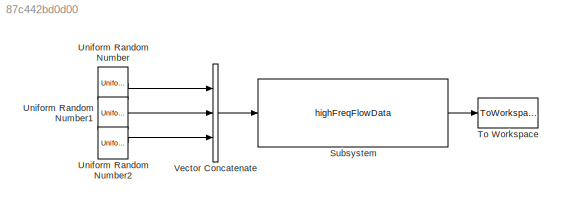
MODEL slx_87c442bd0d00
KIND model
CONFIG AbsTol = auto
CONFIG EnableMultiTasking = off
CONFIG FixedStep = auto
CONFIG MaxStep = auto
CONFIG MinStep = auto
CONFIG RelTol = 1e-3
CONFIG SampleTimeConstraint = Unconstrained
CONFIG Solver = VariableStepAuto
CONFIG SolverName = VariableStepAuto
CONFIG StartTime = 0.0
CONFIG StopTime = 3600
BLOCK [Reference] Subsystem  REF=highFreqFlowData_ul/highFreqFlowData
  Ports = [1, 1]
  SourceBlock = highFreqFlowData_ul/highFreqFlowData
  SourceType = SubSystem
BLOCK [ToWorkspace] To Workspace
  FixptAsFi = on
  MaxDataPoints = inf
  Ports = [1]
  SampleTime = -1
  Save2DSignal = 3-D array (concatenate along third dimension)
  SaveFormat = Timeseries
  VariableName = simout
BLOCK [UniformRandomNumber] Uniform Random Number
  SampleTime = 0.1
BLOCK [UniformRandomNumber] Uniform Random Number1
  SampleTime = 0.1
BLOCK [UniformRandomNumber] Uniform Random Number2
  SampleTime = 0.1
BLOCK [Concatenate] Vector Concatenate
  NumInputs = 3
  Ports = [3, 1]
LINE Subsystem:1 -> To Workspace:1
LINE Uniform Random Number1:1 -> Vector Concatenate:2
LINE Uniform Random Number2:1 -> Vector Concatenate:3
LINE Uniform Random Number:1 -> Vector Concatenate:1
LINE Vector Concatenate:1 -> Subsystem:1
